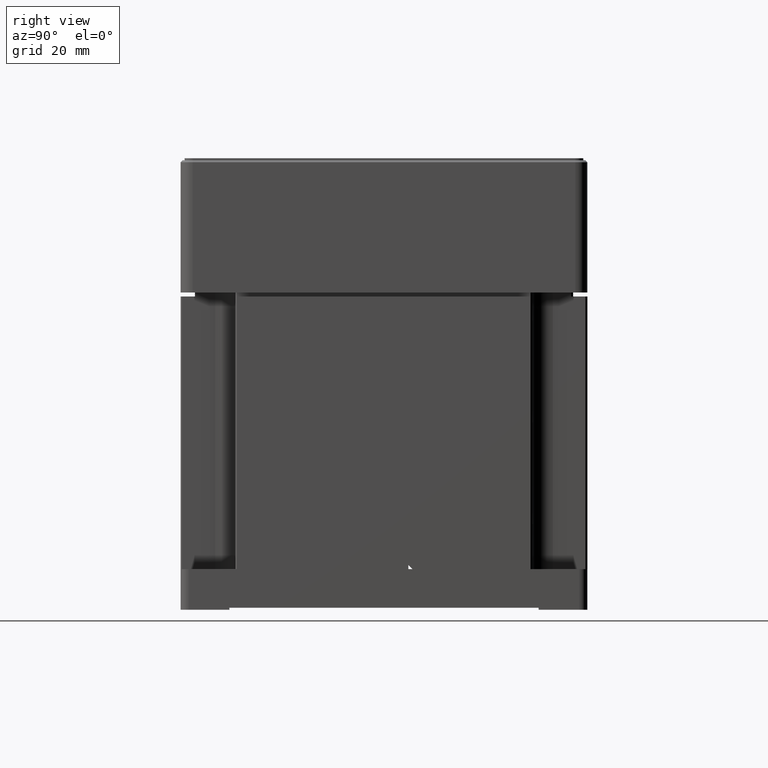
[diagram: clean part render]
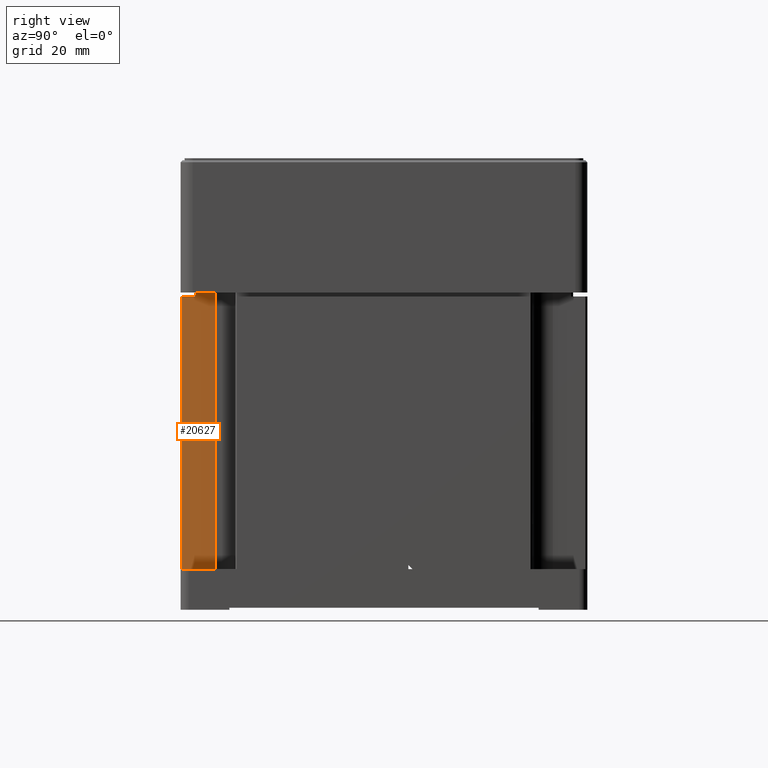
[diagram: same view with one face highlighted and labeled with its STEP entity id]
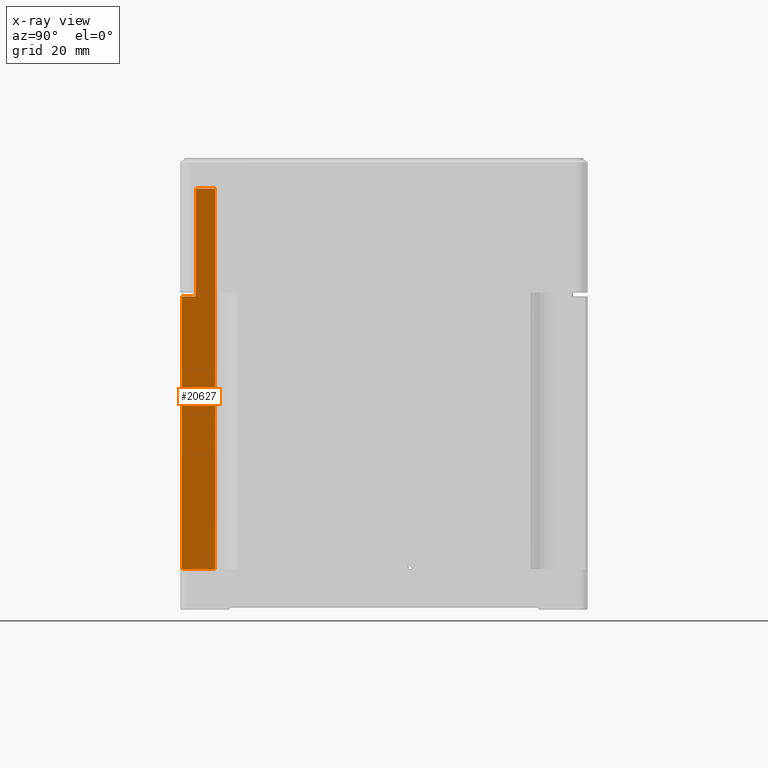
[diagram: x-ray of the same camera — body ghosted, the highlighted face saturated]
A machine part, right view. The second image highlights one B-rep face of the part: STEP entity #20627.
The next image is the same camera in x-ray: the body ghosted, the highlighted face saturated — about 0% of this face is hidden behind the body in this view.
In plain terms, the highlighted planar face has unit normal (-1, 0, 0).
Its self-contained STEP definition (entity closure, byte-faithful):
#669 = CARTESIAN_POINT ( 'NONE',  ( 36.50000000000000711, -46.19999999999998863, 67.00000000000000000 ) ) ;
#1444 = VECTOR ( 'NONE', #10572, 1000.000000000000000 ) ;
#2582 = VERTEX_POINT ( 'NONE', #669 ) ;
#3253 = VERTEX_POINT ( 'NONE', #4370 ) ;
#3400 = CARTESIAN_POINT ( 'NONE',  ( 36.50000000000000000, -46.19999999999998153, 93.50000000000000000 ) ) ;
#4370 = CARTESIAN_POINT ( 'NONE',  ( 36.50000000000000000, -41.50000000000000000, 93.50000000000000000 ) ) ;
#4585 = VERTEX_POINT ( 'NONE', #35650 ) ;
#4779 = CARTESIAN_POINT ( 'NONE',  ( 36.50000000000000000, -46.19999999999998153, 93.49999999999998579 ) ) ;
#5828 = LINE ( 'NONE', #28902, #17922 ) ;
#6159 = LINE ( 'NONE', #34789, #24359 ) ;
#7233 = FACE_OUTER_BOUND ( 'NONE', #34567, .T. ) ;
#7426 = ORIENTED_EDGE ( 'NONE', *, *, #29453, .F. ) ;
#7473 = VERTEX_POINT ( 'NONE', #39358 ) ;
#8574 = CARTESIAN_POINT ( 'NONE',  ( 36.50000000000000000, -49.69999999999998863, 0.000000000000000000 ) ) ;
#9197 = DIRECTION ( 'NONE',  ( -0.000000000000000000, 1.000000000000000000, 0.000000000000000000 ) ) ;
#9313 = DIRECTION ( 'NONE',  ( -0.000000000000000000, -1.000000000000000000, -0.000000000000000000 ) ) ;
#10572 = DIRECTION ( 'NONE',  ( 0.000000000000000000, 0.000000000000000000, 1.000000000000000000 ) ) ;
#11887 = CARTESIAN_POINT ( 'NONE',  ( 36.50000000000000000, 0.000000000000000000, 0.000000000000000000 ) ) ;
#13383 = PLANE ( 'NONE',  #20290 ) ;
#13810 = DIRECTION ( 'NONE',  ( -1.000000000000000000, 0.000000000000000000, 0.000000000000000000 ) ) ;
#17922 = VECTOR ( 'NONE', #9197, 1000.000000000000000 ) ;
#18232 = VERTEX_POINT ( 'NONE', #4779 ) ;
#18400 = VERTEX_POINT ( 'NONE', #8574 ) ;
#19077 = DIRECTION ( 'NONE',  ( 0.000000000000000000, 0.000000000000000000, 1.000000000000000000 ) ) ;
#20290 = AXIS2_PLACEMENT_3D ( 'NONE', #39048, #13810, #29500 ) ;
#20627 = ADVANCED_FACE ( 'NONE', ( #7233 ), #13383, .F. ) ;
#20814 = EDGE_CURVE ( 'NONE', #7473, #18400, #28017, .T. ) ;
#21013 = EDGE_CURVE ( 'NONE', #4585, #2582, #27127, .T. ) ;
#22041 = EDGE_CURVE ( 'NONE', #2582, #18232, #29036, .T. ) ;
#23645 = ORIENTED_EDGE ( 'NONE', *, *, #25146, .F. ) ;
#23715 = CARTESIAN_POINT ( 'NONE',  ( 36.50000000000000000, -50.00000000000000000, 67.00000000000000000 ) ) ;
#24348 = DIRECTION ( 'NONE',  ( 0.000000000000000000, 1.000000000000000000, -0.000000000000000000 ) ) ;
#24359 = VECTOR ( 'NONE', #19077, 1000.000000000000000 ) ;
#25146 = EDGE_CURVE ( 'NONE', #3253, #7473, #28699, .T. ) ;
#25172 = ORIENTED_EDGE ( 'NONE', *, *, #22041, .F. ) ;
#25503 = CARTESIAN_POINT ( 'NONE',  ( 36.50000000000000000, -41.50000000000000000, 93.50000000000000000 ) ) ;
#27127 = LINE ( 'NONE', #23715, #32505 ) ;
#28017 = LINE ( 'NONE', #11887, #31171 ) ;
#28699 = LINE ( 'NONE', #25503, #35409 ) ;
#28902 = CARTESIAN_POINT ( 'NONE',  ( 36.50000000000000000, 0.000000000000000000, 93.50000000000000000 ) ) ;
#29036 = LINE ( 'NONE', #3400, #1444 ) ;
#29453 = EDGE_CURVE ( 'NONE', #18232, #3253, #5828, .T. ) ;
#29500 = DIRECTION ( 'NONE',  ( 0.000000000000000000, 0.000000000000000000, 1.000000000000000000 ) ) ;
#30816 = ORIENTED_EDGE ( 'NONE', *, *, #37650, .F. ) ;
#31171 = VECTOR ( 'NONE', #9313, 1000.000000000000000 ) ;
#32505 = VECTOR ( 'NONE', #24348, 1000.000000000000000 ) ;
#34567 = EDGE_LOOP ( 'NONE', ( #30816, #39319, #23645, #7426, #25172, #36154 ) ) ;
#34789 = CARTESIAN_POINT ( 'NONE',  ( 36.50000000000000000, -49.69999999999998153, 93.50000000000000000 ) ) ;
#35409 = VECTOR ( 'NONE', #38459, 1000.000000000000000 ) ;
#35650 = CARTESIAN_POINT ( 'NONE',  ( 36.50000000000000711, -49.69999999999998863, 67.00000000000000000 ) ) ;
#36154 = ORIENTED_EDGE ( 'NONE', *, *, #21013, .F. ) ;
#37650 = EDGE_CURVE ( 'NONE', #18400, #4585, #6159, .T. ) ;
#38459 = DIRECTION ( 'NONE',  ( -0.000000000000000000, -0.000000000000000000, -1.000000000000000000 ) ) ;
#39048 = CARTESIAN_POINT ( 'NONE',  ( 36.50000000000000000, -50.00000000000000000, 93.50000000000000000 ) ) ;
#39319 = ORIENTED_EDGE ( 'NONE', *, *, #20814, .F. ) ;
#39358 = CARTESIAN_POINT ( 'NONE',  ( 36.50000000000000000, -41.50000000000000000, 0.000000000000000000 ) ) ;